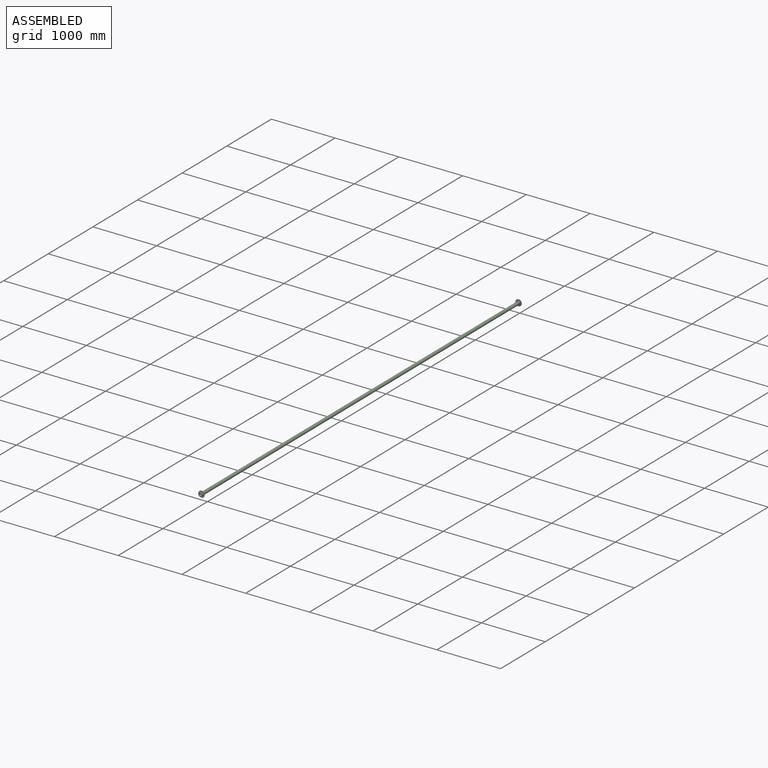
[diagram: assembled view]
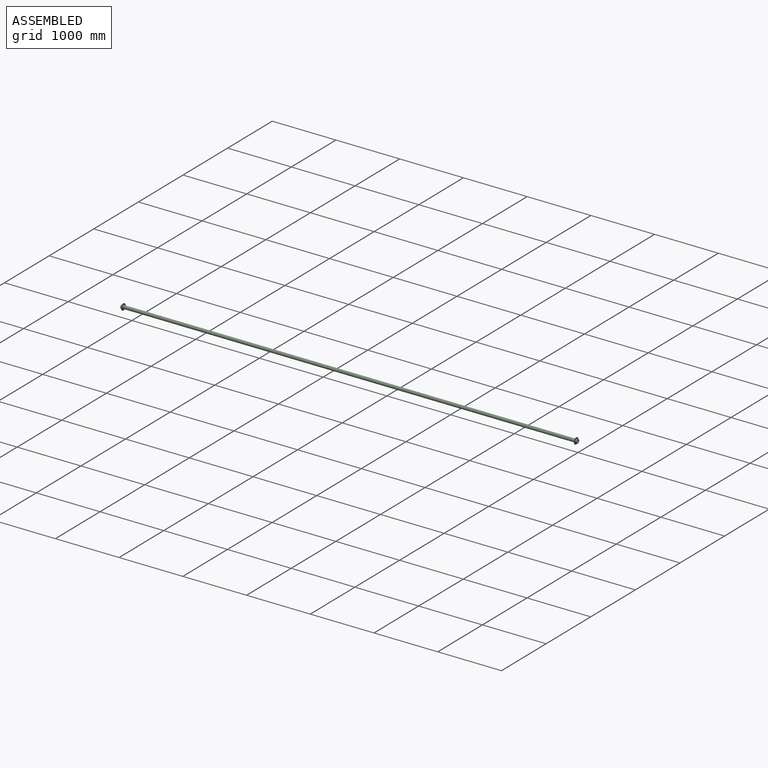
[diagram: assembled view, second angle]
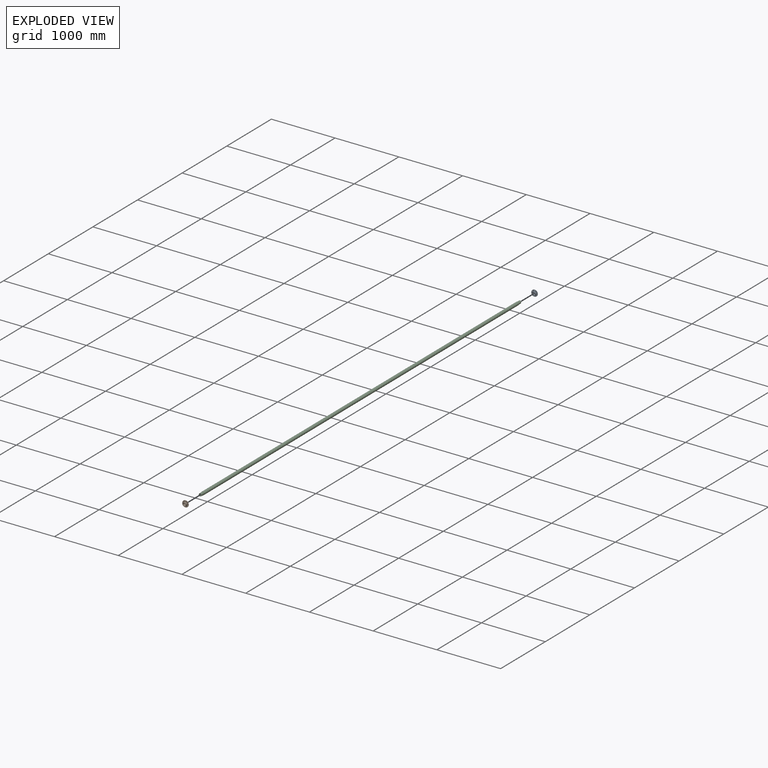
[diagram: exploded view]
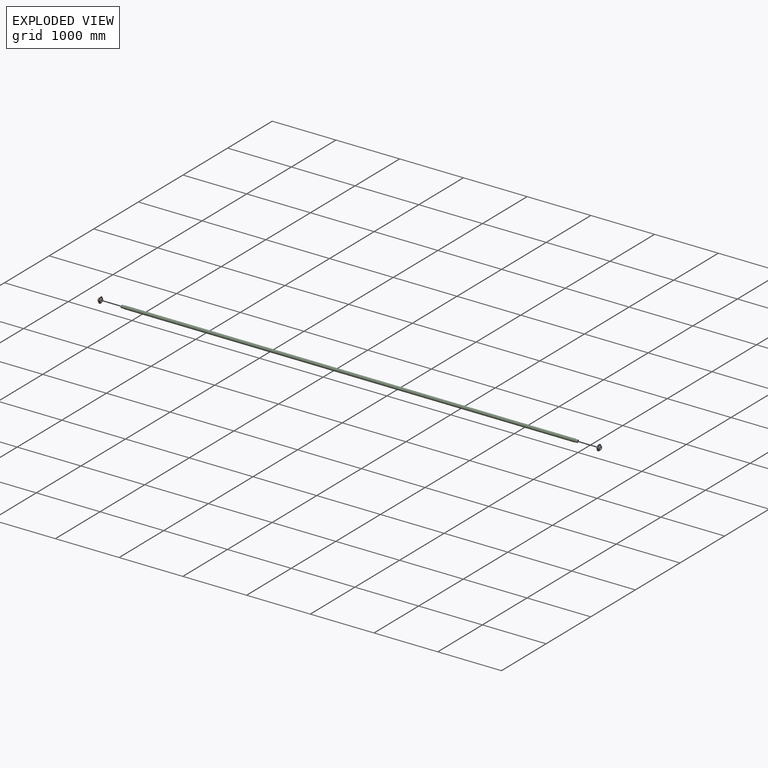
[diagram: exploded view, second angle]
ASSEMBLY  parts=3 mates=2
PART A: 15 faces, bbox 98.4x50.8x98.4 mm
  f0: cylinder r=28.57mm len=57.15mm, axis (0,1,0), area 4560.4mm2, adj f4,f7
  f1: cylinder r=22.23mm len=50.8mm, axis (0,1,0), area 7093.9mm2, adj f3,f4
  f2: cylinder r=28.57mm len=57.15mm, axis (0,1,0), area 2850.2mm2, adj f3,f14
  f3: plane 57.15x57.15mm, normal (0,-1,0), area 1013.4mm2, adj f1,f2
  f4: plane 57.15x57.15mm, normal (0,1,0), area 1013.4mm2, adj f0,f1
  f5: cylinder r=49.21mm len=98.43mm, axis (0,1,0), area 1963.5mm2, adj f6,f7
  f6: plane 98.43x98.43mm, normal (0,-1,0), area 4014.1mm2, adj f5,f8,f9,f10,f11,f12,f13,f14
  f7: plane 98.43x98.43mm, normal (0,1,0), area 4615.8mm2, adj f0,f5,f8,f9,f10,f11,f12,f13
  f8: cylinder r=4.76mm len=9.53mm, axis (0,1,0), area 190mm2, adj f6,f7
  f9: cylinder r=4.76mm len=9.53mm, axis (0,1,0), area 190mm2, adj f6,f7
  f10: cylinder r=4.76mm len=9.53mm, axis (0,1,0), area 190mm2, adj f6,f7
  f11: cylinder r=4.76mm len=9.53mm, axis (0,1,0), area 190mm2, adj f6,f7
  f12: cylinder r=4.76mm len=9.53mm, axis (0,1,0), area 190mm2, adj f6,f7
  f13: cylinder r=4.76mm len=9.53mm, axis (0,1,0), area 190mm2, adj f6,f7
  f14: torus R=31.75mm, axis (0,-1,0), area 931.6mm2, adj f2,f6
PART B: same geometry as A
PART C: 8 faces, bbox 50.8x7162.8x50.8 mm
  f0: cylinder r=25.4mm len=7061.2mm, axis (0,1,0), area 1126917.4mm2, adj f5,f7
  f1: plane 44.45x44.45mm, normal (0,1,0), area 411.7mm2, adj f3,f6
  f2: plane 44.45x44.45mm, normal (0,-1,0), area 411.7mm2, adj f3,f4
  f3: cylinder r=19.05mm len=7162.8mm, axis (0,1,0), area 857349.1mm2, adj f1,f2
  f4: cylinder r=22.23mm len=50.8mm, axis (0,-1,0), area 7093.9mm2, adj f2,f5
  f5: plane 50.8x50.8mm, normal (0,-1,0), area 475mm2, adj f0,f4
  f6: cylinder r=22.23mm len=50.8mm, axis (0,1,0), area 7093.9mm2, adj f1,f7
  f7: plane 50.8x50.8mm, normal (0,1,0), area 475mm2, adj f0,f6
PLACE A t=(0,-25.4,0)mm
PLACE B rot(axis=(1,0,0),180deg) t=(0,-7137.4,0)mm
PLACE C at identity
MATE revolute B.f1 <-> C.f4  axis (0,1,0) through (0,-7112,0)mm
MATE revolute A.f1 <-> C.f4  axis (0,-1,0) through (0,-50.8,0)mm
